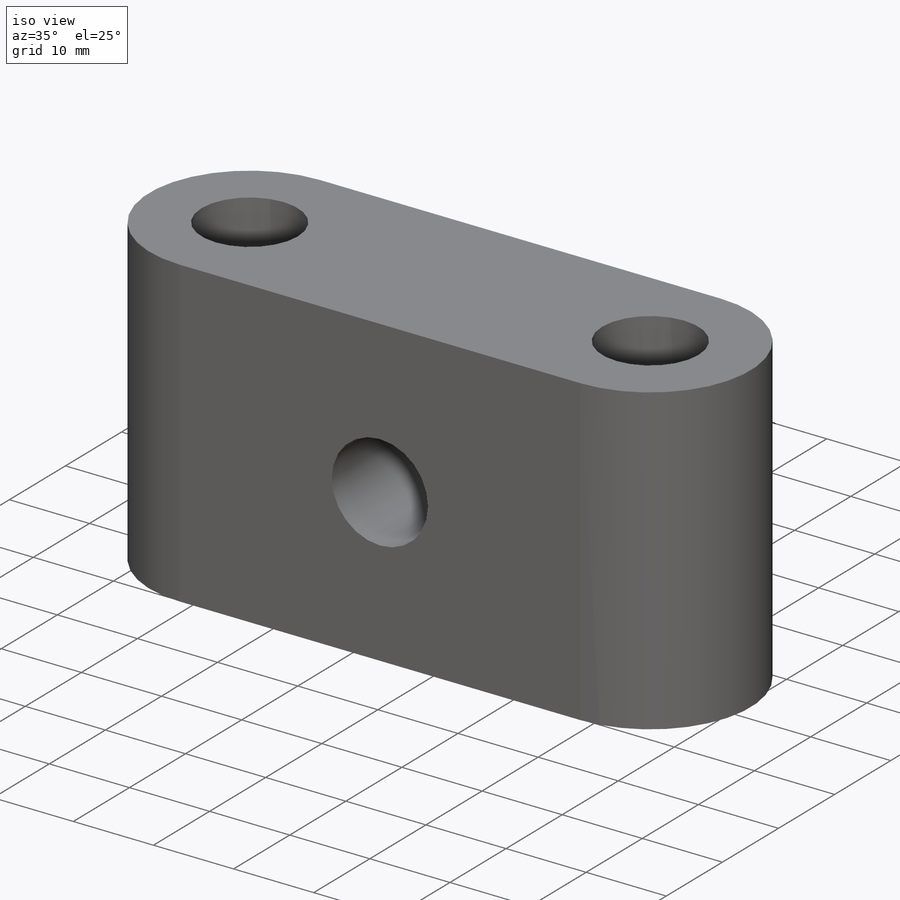
[diagram: iso view]
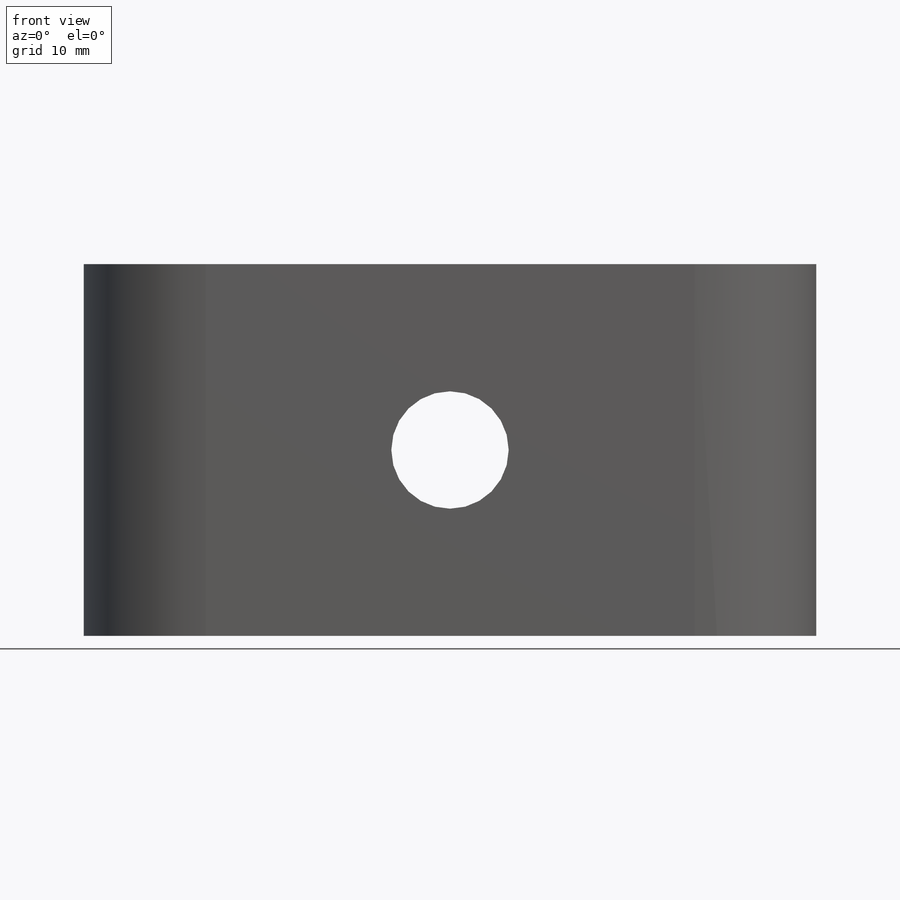
[diagram: front view]
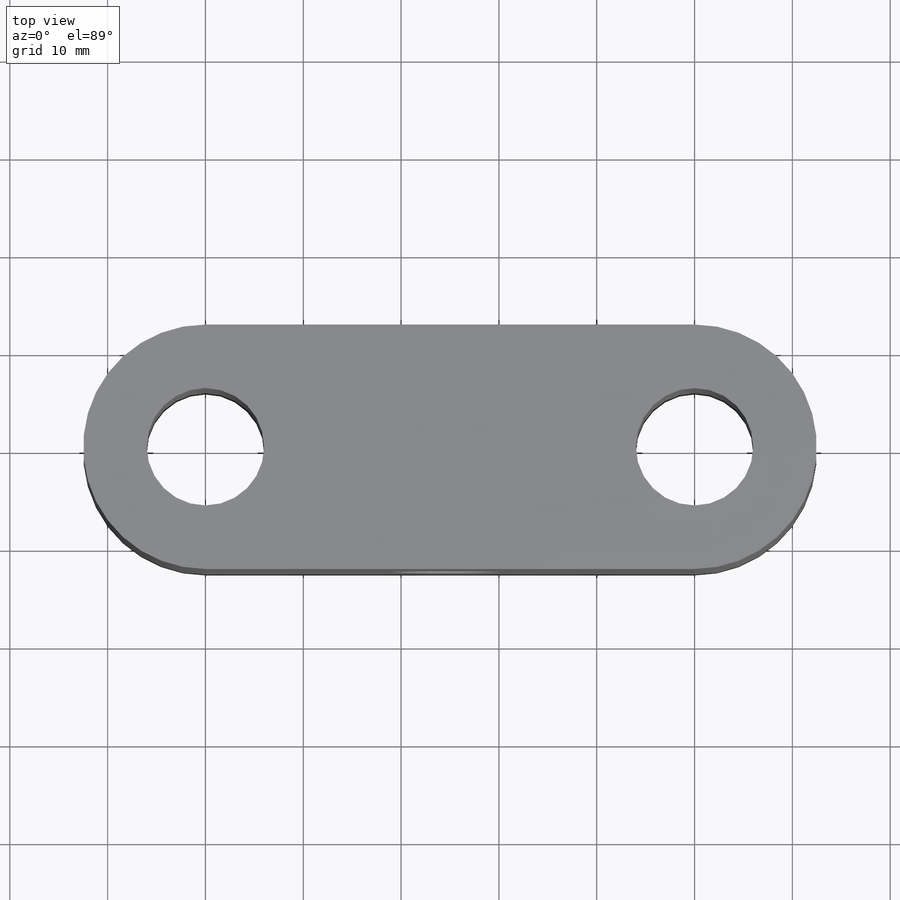
[diagram: top view]
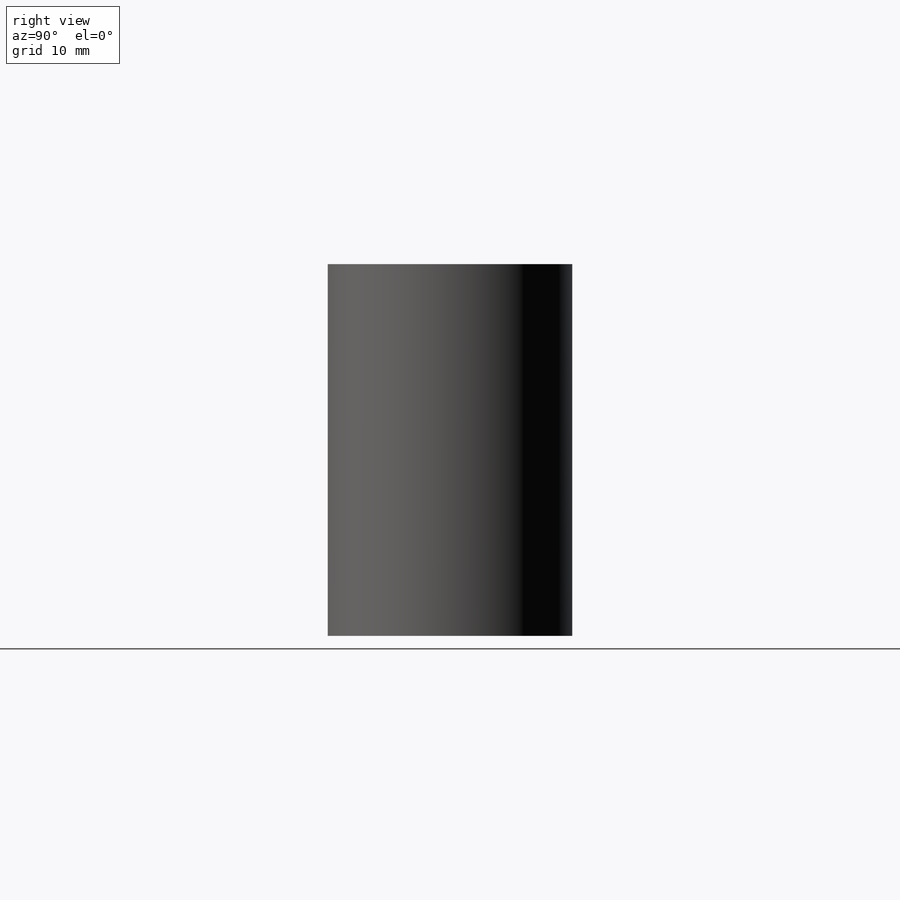
[diagram: right view]
SOLIDWORKS PART (.sldprt)
format: sldprt  version: not decoded by parser v0  size: 211,968 bytes
history: native  units: mm
features: sketch x3, material x1, extrude x1, cut_extrude x1 (+13 scaffold rows collapsed)
feature tree (19):
  scaffold x13  (default folders/planes/origin — collapsed)
  material  "Material <not specified>"
  sketch  "Sketch1"  dims[D2=12.5mm D3=12.0mm D4=12.0mm D1=50.0mm]
  sketch  "Sketch2"  dims[D1=~86.152335mm]
  extrude  "Boss-Extrude1"  Depth=38mm
  sketch  "Sketch3"  dims[D1=12.0mm]
  cut_extrude  "Cut-Extrude1"  Depth=38mm
decode coverage: 5 of 5 modeling features carry decoded parameters
note: ~ marks probable driven/reference dimensions
note: suppression state not decoded; provenance and decode notes live in map.json
